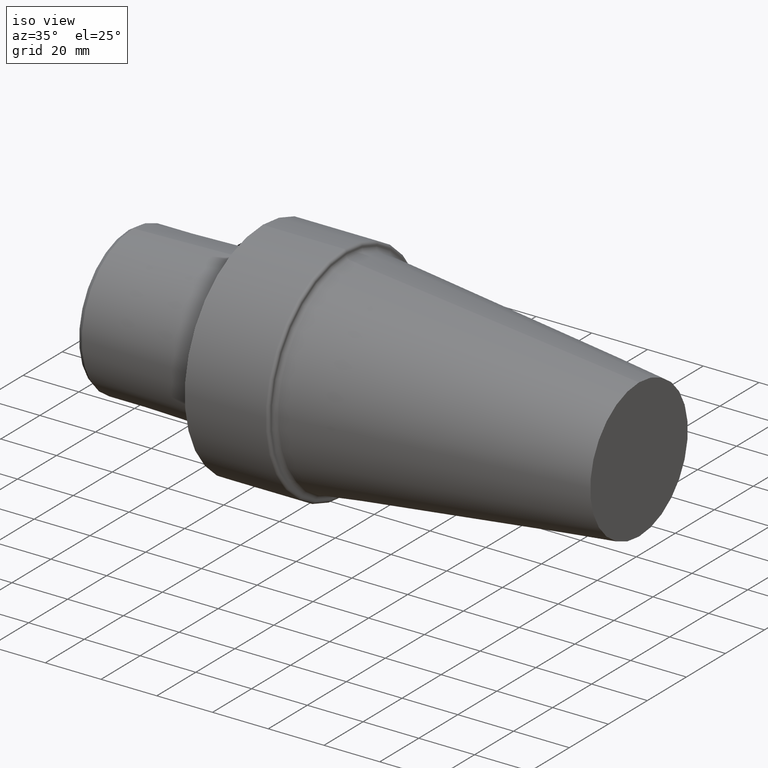
[diagram: clean part render]
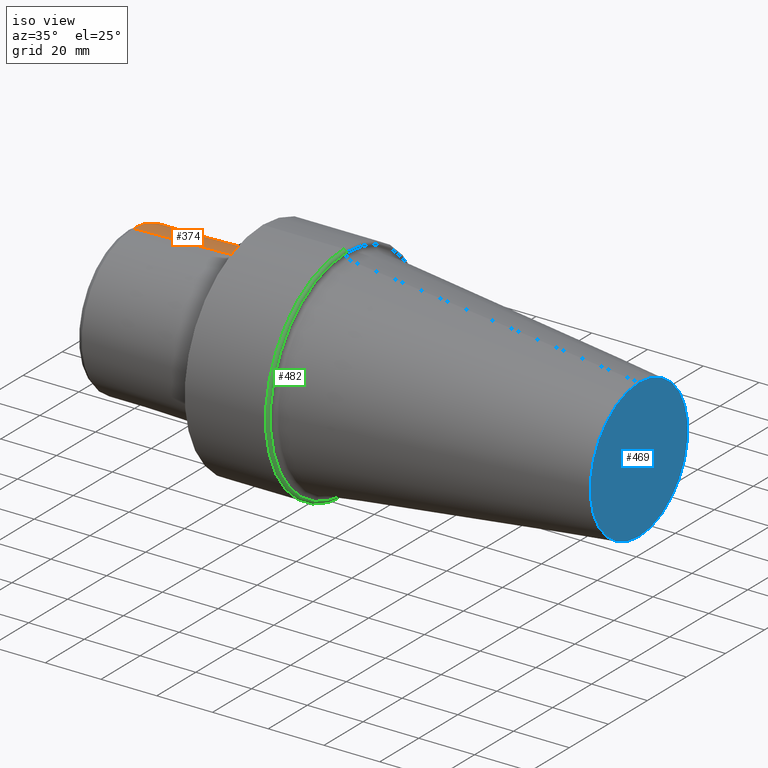
[diagram: same view with three faces highlighted in distinct colors, each labeled with its STEP entity id]
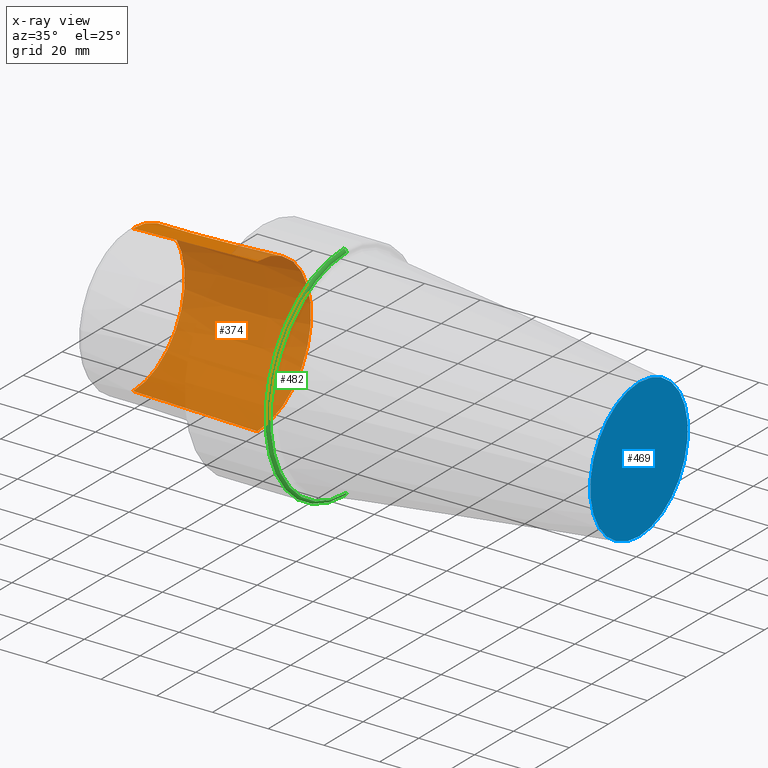
[diagram: x-ray of the same camera — body ghosted, the three highlighted faces saturated]
A machine part, iso view with three faces highlighted in distinct colors.
The next image is the same camera in x-ray (body ghosted, the three faces saturated) — at least one of them is partly hidden behind the body in this view.
Their STEP definitions:

[orange] entity #374 — the highlighted conical surface has half-angle 1.432 deg.
#8 = ORIENTED_EDGE ( 'NONE', *, *, #144, .F. ) ;
#9 = CARTESIAN_POINT ( 'NONE',  ( -1.940694418020491918, 0.000000000000000000, 0.000000000000000000 ) ) ;
#22 = VERTEX_POINT ( 'NONE', #348 ) ;
#36 = EDGE_LOOP ( 'NONE', ( #8, #328, #313, #125 ) ) ;
#71 = LINE ( 'NONE', #516, #302 ) ;
#80 = EDGE_CURVE ( 'NONE', #467, #22, #306, .T. ) ;
#102 = CIRCLE ( 'NONE', #512, 26.41260027305914804 ) ;
#103 = AXIS2_PLACEMENT_3D ( 'NONE', #293, #462, #165 ) ;
#109 = CARTESIAN_POINT ( 'NONE',  ( -1.940694418020491918, 0.000000000000000000, 27.52650806192296074 ) ) ;
#121 = EDGE_CURVE ( 'NONE', #504, #22, #431, .T. ) ;
#125 = ORIENTED_EDGE ( 'NONE', *, *, #80, .F. ) ;
#139 = VECTOR ( 'NONE', #390, 1000.000000000000114 ) ;
#144 = EDGE_CURVE ( 'NONE', #537, #467, #102, .T. ) ;
#165 = DIRECTION ( 'NONE',  ( 0.000000000000000000, 0.000000000000000000, -1.000000000000000000 ) ) ;
#166 = CONICAL_SURFACE ( 'NONE', #103, 27.52650806192296074, 0.02499311489546479637 ) ;
#173 = FACE_OUTER_BOUND ( 'NONE', #36, .T. ) ;
#181 = CARTESIAN_POINT ( 'NONE',  ( -1.940694418020491918, 0.000000000000000000, -27.52650806192296074 ) ) ;
#194 = CARTESIAN_POINT ( 'NONE',  ( -46.49999995257000052, 3.302817818564909263E-15, 26.41260027305914804 ) ) ;
#239 = CARTESIAN_POINT ( 'NONE',  ( -46.49999995257000052, 0.000000000000000000, 0.000000000000000000 ) ) ;
#256 = AXIS2_PLACEMENT_3D ( 'NONE', #9, #301, #347 ) ;
#293 = CARTESIAN_POINT ( 'NONE',  ( -1.940694418020491918, 0.000000000000000000, 0.000000000000000000 ) ) ;
#301 = DIRECTION ( 'NONE',  ( -1.000000000000000000, 0.000000000000000000, 0.000000000000000000 ) ) ;
#302 = VECTOR ( 'NONE', #520, 1000.000000000000114 ) ;
#306 = LINE ( 'NONE', #181, #139 ) ;
#313 = ORIENTED_EDGE ( 'NONE', *, *, #121, .T. ) ;
#318 = DIRECTION ( 'NONE',  ( -1.000000000000000000, 0.000000000000000000, 0.000000000000000000 ) ) ;
#328 = ORIENTED_EDGE ( 'NONE', *, *, #519, .T. ) ;
#347 = DIRECTION ( 'NONE',  ( 0.000000000000000000, 0.000000000000000000, 1.000000000000000000 ) ) ;
#348 = CARTESIAN_POINT ( 'NONE',  ( -1.940694418020491918, 3.371024998973778328E-15, -27.52650806192296074 ) ) ;
#374 = ADVANCED_FACE ( 'NONE', ( #173 ), #166, .T. ) ;
#390 = DIRECTION ( 'NONE',  ( 0.9996876883616916398, 0.000000000000000000, -0.02499051296106804404 ) ) ;
#411 = CARTESIAN_POINT ( 'NONE',  ( -46.49999995257000052, 0.000000000000000000, -26.41260027305914804 ) ) ;
#431 = CIRCLE ( 'NONE', #256, 27.52650806192296074 ) ;
#462 = DIRECTION ( 'NONE',  ( 1.000000000000000000, 0.000000000000000000, 0.000000000000000000 ) ) ;
#467 = VERTEX_POINT ( 'NONE', #411 ) ;
#504 = VERTEX_POINT ( 'NONE', #109 ) ;
#512 = AXIS2_PLACEMENT_3D ( 'NONE', #239, #318, #524 ) ;
#516 = CARTESIAN_POINT ( 'NONE',  ( -1.940694418020491918, 3.371024998973778328E-15, 27.52650806192296074 ) ) ;
#519 = EDGE_CURVE ( 'NONE', #537, #504, #71, .T. ) ;
#520 = DIRECTION ( 'NONE',  ( 0.9996876883616916398, 3.060455170682238758E-18, 0.02499051296106804404 ) ) ;
#524 = DIRECTION ( 'NONE',  ( 0.000000000000000000, 0.000000000000000000, 1.000000000000000000 ) ) ;
#537 = VERTEX_POINT ( 'NONE', #194 ) ;

[blue] entity #469 — the highlighted planar face has unit normal (-1, 0, 0).
#32 = CIRCLE ( 'NONE', #54, 24.99999997449999967 ) ;
#38 = FACE_OUTER_BOUND ( 'NONE', #117, .T. ) ;
#45 = ORIENTED_EDGE ( 'NONE', *, *, #365, .F. ) ;
#54 = AXIS2_PLACEMENT_3D ( 'NONE', #387, #241, #377 ) ;
#67 = CARTESIAN_POINT ( 'NONE',  ( 134.9999998623000010, 3.787099996474778961E-15, -24.99999997449999967 ) ) ;
#117 = EDGE_LOOP ( 'NONE', ( #45, #287 ) ) ;
#136 = DIRECTION ( 'NONE',  ( 0.000000000000000000, 0.000000000000000000, 1.000000000000000000 ) ) ;
#168 = VERTEX_POINT ( 'NONE', #67 ) ;
#199 = CIRCLE ( 'NONE', #238, 24.99999997449999967 ) ;
#203 = PLANE ( 'NONE',  #277 ) ;
#214 = VERTEX_POINT ( 'NONE', #521 ) ;
#238 = AXIS2_PLACEMENT_3D ( 'NONE', #539, #417, #136 ) ;
#241 = DIRECTION ( 'NONE',  ( -1.000000000000000000, 0.000000000000000000, 0.000000000000000000 ) ) ;
#265 = DIRECTION ( 'NONE',  ( -1.000000000000000000, 0.000000000000000000, 0.000000000000000000 ) ) ;
#277 = AXIS2_PLACEMENT_3D ( 'NONE', #372, #265, #393 ) ;
#287 = ORIENTED_EDGE ( 'NONE', *, *, #464, .F. ) ;
#365 = EDGE_CURVE ( 'NONE', #214, #168, #199, .T. ) ;
#372 = CARTESIAN_POINT ( 'NONE',  ( 134.9999998623000010, 0.000000000000000000, 0.000000000000000000 ) ) ;
#377 = DIRECTION ( 'NONE',  ( 0.000000000000000000, 0.000000000000000000, 1.000000000000000000 ) ) ;
#387 = CARTESIAN_POINT ( 'NONE',  ( 134.9999998623000010, 0.000000000000000000, 0.000000000000000000 ) ) ;
#393 = DIRECTION ( 'NONE',  ( 0.000000000000000000, 0.000000000000000000, 1.000000000000000000 ) ) ;
#417 = DIRECTION ( 'NONE',  ( -1.000000000000000000, 0.000000000000000000, 0.000000000000000000 ) ) ;
#464 = EDGE_CURVE ( 'NONE', #168, #214, #32, .T. ) ;
#469 = ADVANCED_FACE ( 'NONE', ( #38 ), #203, .F. ) ;
#521 = CARTESIAN_POINT ( 'NONE',  ( 134.9999998623000010, 0.000000000000000000, 24.99999997449999967 ) ) ;
#539 = CARTESIAN_POINT ( 'NONE',  ( 134.9999998623000010, 0.000000000000000000, 0.000000000000000000 ) ) ;

[green] entity #482 — the highlighted toroidal blend (fillet) surface has major radius 38.9925 mm and minor (blend) radius 1 mm.
#43 = CARTESIAN_POINT ( 'NONE',  ( 29.99999996940000102, 4.836436366599519633E-15, -38.99249996022764719 ) ) ;
#58 = AXIS2_PLACEMENT_3D ( 'NONE', #528, #320, #116 ) ;
#76 = CIRCLE ( 'NONE', #386, 0.9999999989799973621 ) ;
#88 = TOROIDAL_SURFACE ( 'NONE', #379, 38.99249996022764719, 0.9999999989799999156 ) ;
#94 = DIRECTION ( 'NONE',  ( 0.000000000000000000, 0.000000000000000000, 1.000000000000000000 ) ) ;
#113 = EDGE_CURVE ( 'NONE', #373, #526, #175, .T. ) ;
#116 = DIRECTION ( 'NONE',  ( 0.000000000000000000, 0.000000000000000000, 1.000000000000000000 ) ) ;
#141 = FACE_OUTER_BOUND ( 'NONE', #479, .T. ) ;
#145 = AXIS2_PLACEMENT_3D ( 'NONE', #314, #278, #488 ) ;
#175 = CIRCLE ( 'NONE', #362, 38.99249996022764719 ) ;
#182 = EDGE_CURVE ( 'NONE', #526, #440, #376, .T. ) ;
#187 = CARTESIAN_POINT ( 'NONE',  ( 28.99999997041999933, 0.000000000000000000, 0.000000000000000000 ) ) ;
#202 = ORIENTED_EDGE ( 'NONE', *, *, #303, .F. ) ;
#210 = CARTESIAN_POINT ( 'NONE',  ( 28.99999997041999933, 4.897668706494425201E-15, -39.99249995920764889 ) ) ;
#224 = CARTESIAN_POINT ( 'NONE',  ( 29.99999996940000102, 0.000000000000000000, 38.99249996022764719 ) ) ;
#242 = CARTESIAN_POINT ( 'NONE',  ( 28.99999997041999933, 0.000000000000000000, 39.99249995920764889 ) ) ;
#251 = CARTESIAN_POINT ( 'NONE',  ( 28.99999997041999933, 4.775204026704606177E-15, -38.99249996022764719 ) ) ;
#258 = CIRCLE ( 'NONE', #58, 39.99249995920764889 ) ;
#278 = DIRECTION ( 'NONE',  ( 0.000000000000000000, -1.000000000000000000, 0.000000000000000000 ) ) ;
#303 = EDGE_CURVE ( 'NONE', #419, #440, #258, .T. ) ;
#305 = ORIENTED_EDGE ( 'NONE', *, *, #113, .T. ) ;
#310 = CARTESIAN_POINT ( 'NONE',  ( 29.99999996940000102, 0.000000000000000000, 0.000000000000000000 ) ) ;
#314 = CARTESIAN_POINT ( 'NONE',  ( 28.99999997041999933, 0.000000000000000000, 38.99249996022764719 ) ) ;
#320 = DIRECTION ( 'NONE',  ( -1.000000000000000000, 0.000000000000000000, 0.000000000000000000 ) ) ;
#326 = DIRECTION ( 'NONE',  ( 0.000000000000000000, -1.224646799147358384E-16, 1.000000000000000000 ) ) ;
#350 = DIRECTION ( 'NONE',  ( -1.000000000000000000, 0.000000000000000000, 0.000000000000000000 ) ) ;
#362 = AXIS2_PLACEMENT_3D ( 'NONE', #310, #477, #389 ) ;
#373 = VERTEX_POINT ( 'NONE', #43 ) ;
#376 = CIRCLE ( 'NONE', #145, 0.9999999989799973621 ) ;
#378 = ORIENTED_EDGE ( 'NONE', *, *, #398, .F. ) ;
#379 = AXIS2_PLACEMENT_3D ( 'NONE', #187, #350, #94 ) ;
#386 = AXIS2_PLACEMENT_3D ( 'NONE', #251, #465, #326 ) ;
#389 = DIRECTION ( 'NONE',  ( 0.000000000000000000, 0.000000000000000000, 1.000000000000000000 ) ) ;
#398 = EDGE_CURVE ( 'NONE', #373, #419, #76, .T. ) ;
#419 = VERTEX_POINT ( 'NONE', #210 ) ;
#440 = VERTEX_POINT ( 'NONE', #242 ) ;
#457 = ORIENTED_EDGE ( 'NONE', *, *, #182, .T. ) ;
#465 = DIRECTION ( 'NONE',  ( 0.000000000000000000, 1.000000000000000000, 1.224646799147353947E-16 ) ) ;
#477 = DIRECTION ( 'NONE',  ( -1.000000000000000000, 0.000000000000000000, 0.000000000000000000 ) ) ;
#479 = EDGE_LOOP ( 'NONE', ( #378, #305, #457, #202 ) ) ;
#482 = ADVANCED_FACE ( 'NONE', ( #141 ), #88, .T. ) ;
#488 = DIRECTION ( 'NONE',  ( 0.000000000000000000, 0.000000000000000000, -1.000000000000000000 ) ) ;
#526 = VERTEX_POINT ( 'NONE', #224 ) ;
#528 = CARTESIAN_POINT ( 'NONE',  ( 28.99999997041999933, 0.000000000000000000, 0.000000000000000000 ) ) ;